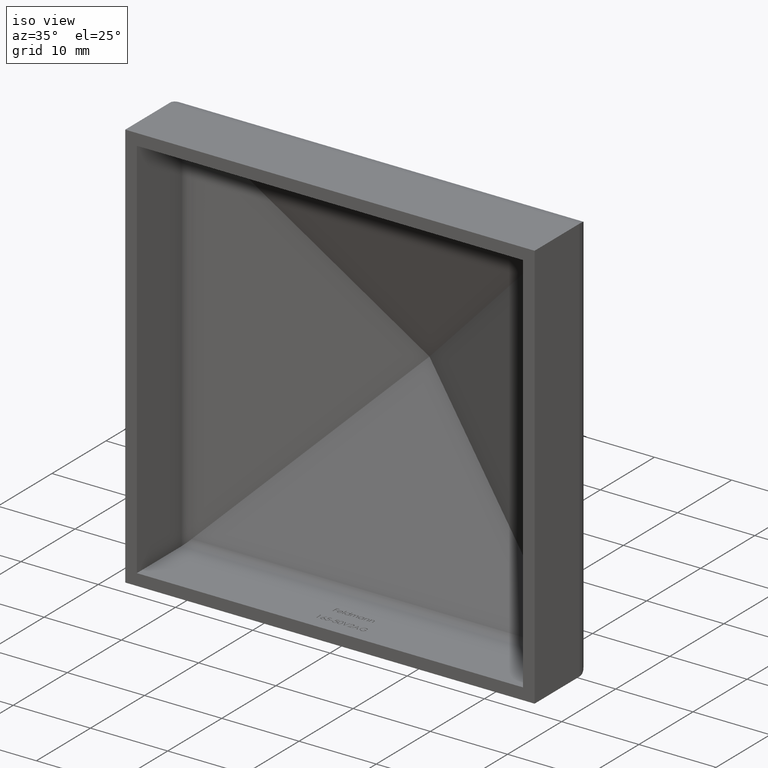
[diagram: clean part render]
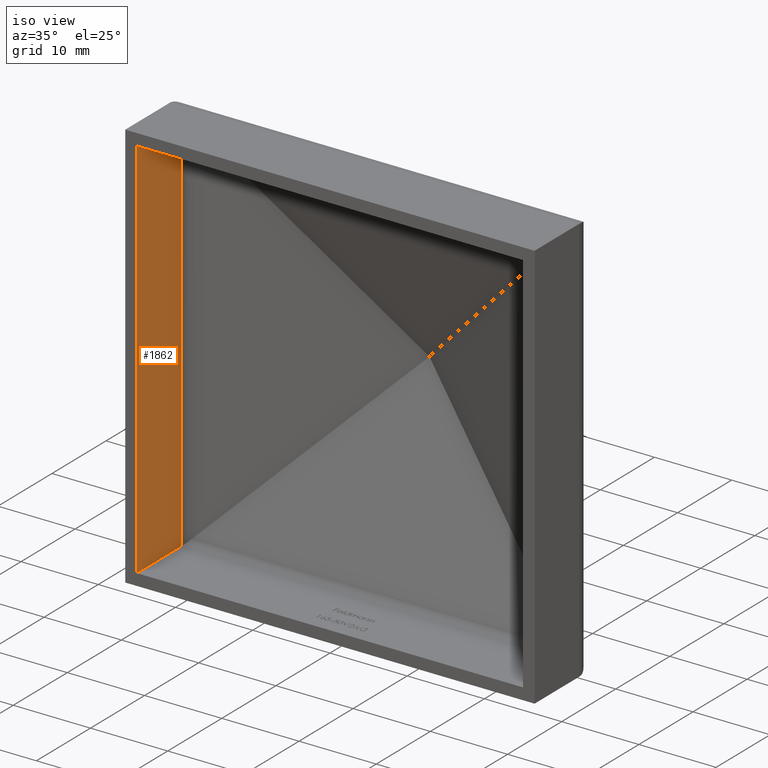
[diagram: same view with one face highlighted and labeled with its STEP entity id]
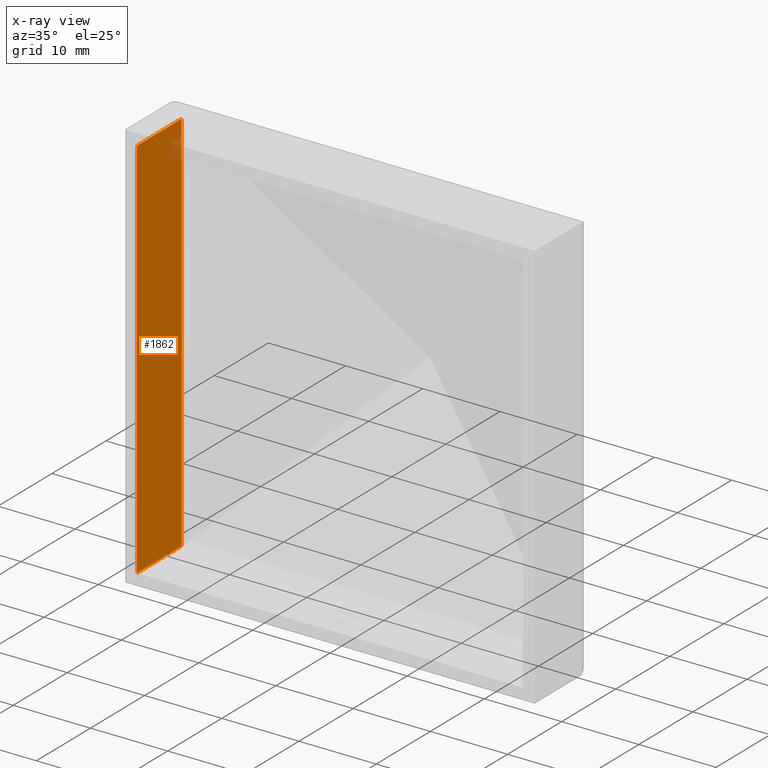
[diagram: x-ray of the same camera — body ghosted, the highlighted face saturated]
A machine part, iso view. The second image highlights one B-rep face of the part: STEP entity #1862.
The next image is the same camera in x-ray: the body ghosted, the highlighted face saturated — about 1% of this face is hidden behind the body in this view.
In plain terms, the highlighted planar face has unit normal (1, 0, -0).
Its self-contained STEP definition (entity closure, byte-faithful):
#113 = CARTESIAN_POINT ( 'NONE',  ( -24.99999999999999300, 25.00000000000000000, 25.00000000000000000 ) ) ;
#183 = EDGE_CURVE ( 'NONE', #12059, #6434, #3238, .T. ) ;
#541 = CARTESIAN_POINT ( 'NONE',  ( -24.99999999999999600, 8.271739631613602500, -26.49999999999999600 ) ) ;
#1211 = CARTESIAN_POINT ( 'NONE',  ( -24.99999999999999300, 8.271739631613602500, 25.00000000000000700 ) ) ;
#1862 = ADVANCED_FACE ( 'NONE', ( #5225 ), #8673, .T. ) ;
#1867 = DIRECTION ( 'NONE',  ( 0.0000000000000000000, -1.000000000000000000, 0.0000000000000000000 ) ) ;
#2471 = EDGE_LOOP ( 'NONE', ( #8823, #11966, #7832, #3001 ) ) ;
#2575 = CARTESIAN_POINT ( 'NONE',  ( -25.00000000000000000, 25.00000000000000000, -26.49999999999999600 ) ) ;
#3001 = ORIENTED_EDGE ( 'NONE', *, *, #183, .T. ) ;
#3238 = LINE ( 'NONE', #541, #11383 ) ;
#3476 = EDGE_CURVE ( 'NONE', #12059, #12809, #13022, .T. ) ;
#4520 = VECTOR ( 'NONE', #4894, 1000.000000000000000 ) ;
#4837 = EDGE_CURVE ( 'NONE', #6434, #8052, #5958, .T. ) ;
#4894 = DIRECTION ( 'NONE',  ( 1.309225264888156400E-016, -0.0000000000000000000, 1.000000000000000000 ) ) ;
#5225 = FACE_OUTER_BOUND ( 'NONE', #2471, .T. ) ;
#5297 = DIRECTION ( 'NONE',  ( 0.0000000000000000000, -1.000000000000000000, 0.0000000000000000000 ) ) ;
#5958 = LINE ( 'NONE', #113, #8970 ) ;
#5996 = CARTESIAN_POINT ( 'NONE',  ( -25.00000000000000000, 0.0000000000000000000, -26.49999999999999600 ) ) ;
#6434 = VERTEX_POINT ( 'NONE', #1211 ) ;
#6600 = CARTESIAN_POINT ( 'NONE',  ( -25.00000000000000000, 0.0000000000000000000, -24.99999999999999300 ) ) ;
#7832 = ORIENTED_EDGE ( 'NONE', *, *, #3476, .F. ) ;
#8044 = VECTOR ( 'NONE', #1867, 1000.000000000000000 ) ;
#8052 = VERTEX_POINT ( 'NONE', #9003 ) ;
#8303 = DIRECTION ( 'NONE',  ( -0.0000000000000000000, -0.0000000000000000000, 1.000000000000000000 ) ) ;
#8386 = CARTESIAN_POINT ( 'NONE',  ( -25.00000000000000000, 8.271739631613602500, -24.99999999999998900 ) ) ;
#8429 = AXIS2_PLACEMENT_3D ( 'NONE', #2575, #8576, #9545 ) ;
#8576 = DIRECTION ( 'NONE',  ( 1.000000000000000000, 0.0000000000000000000, -1.309225264888156400E-016 ) ) ;
#8673 = PLANE ( 'NONE',  #8429 ) ;
#8823 = ORIENTED_EDGE ( 'NONE', *, *, #4837, .T. ) ;
#8970 = VECTOR ( 'NONE', #5297, 1000.000000000000000 ) ;
#9003 = CARTESIAN_POINT ( 'NONE',  ( -24.99999999999999300, 0.0000000000000000000, 25.00000000000000000 ) ) ;
#9545 = DIRECTION ( 'NONE',  ( -1.309225264888156400E-016, 0.0000000000000000000, -1.000000000000000000 ) ) ;
#11202 = CARTESIAN_POINT ( 'NONE',  ( -25.00000000000000000, 25.00000000000000000, -24.99999999999999300 ) ) ;
#11383 = VECTOR ( 'NONE', #8303, 1000.000000000000000 ) ;
#11966 = ORIENTED_EDGE ( 'NONE', *, *, #12879, .F. ) ;
#12059 = VERTEX_POINT ( 'NONE', #8386 ) ;
#12654 = LINE ( 'NONE', #5996, #4520 ) ;
#12809 = VERTEX_POINT ( 'NONE', #6600 ) ;
#12879 = EDGE_CURVE ( 'NONE', #12809, #8052, #12654, .T. ) ;
#13022 = LINE ( 'NONE', #11202, #8044 ) ;